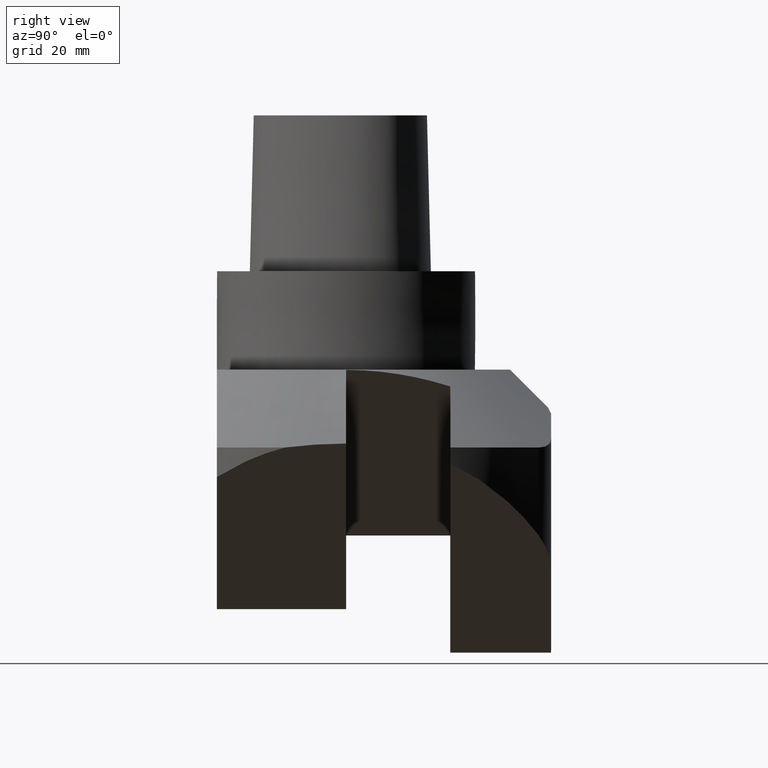
[diagram: clean part render]
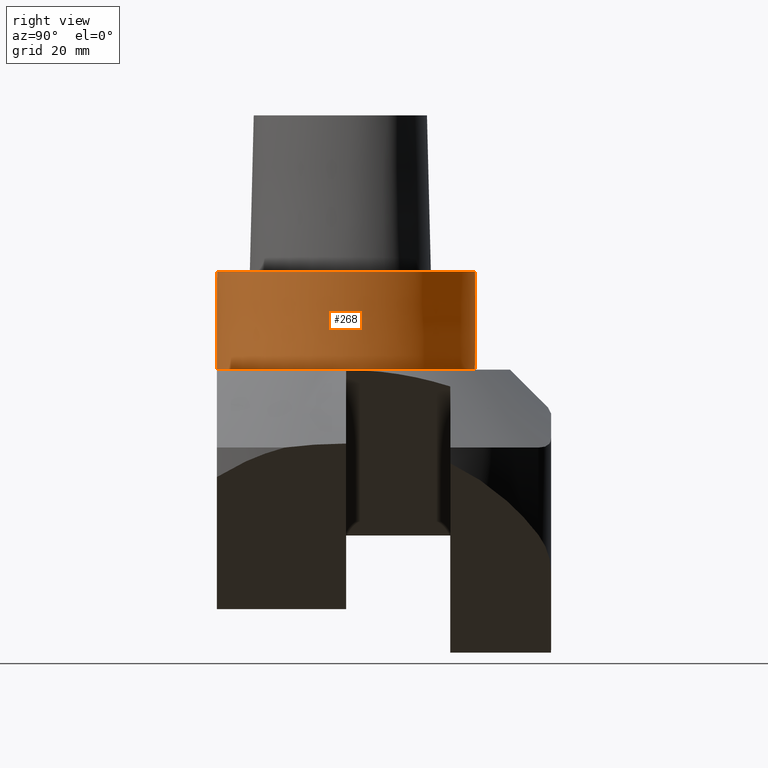
[diagram: same view with one face highlighted and labeled with its STEP entity id]
A machine part, right view. The second image highlights one B-rep face of the part: STEP entity #268.
In plain terms, the highlighted conical surface has half-angle 0 deg.
Its self-contained STEP definition (entity closure, byte-faithful):
#159=EDGE_CURVE('Unnamed[1]',#428,#429,#430,.T.);
#223=EDGE_CURVE('Unnamed[1]',#522,#523,#524,.T.);
#236=EDGE_CURVE('Unnamed[1]',#389,#522,#541,.T.);
#268=ADVANCED_FACE('Unnamed[1]',(#582,#583),#584,.T.);
#294=EDGE_CURVE('Unnamed[1]',#428,#389,#615,.T.);
#311=EDGE_CURVE('Unnamed[1]',#635,#635,#636,.T.);
#361=EDGE_CURVE('Unnamed[1]',#429,#523,#692,.T.);
#389=VERTEX_POINT('',#714);
#428=VERTEX_POINT('',#1703);
#429=VERTEX_POINT('',#1704);
#430=CIRCLE('',#1705,31.5002544909576);
#522=VERTEX_POINT('',#2010);
#523=VERTEX_POINT('',#2011);
#524=B_SPLINE_CURVE_WITH_KNOTS('',2,(#2012,#2013,#2014),.UNSPECIFIED.,.F.,.F.,(3,3),(0.0,4.99991866536584),.UNSPECIFIED.);
#541=CIRCLE('',#2047,31.5002339679628);
#582=FACE_BOUND('',#2150,.T.);
#583=FACE_BOUND('',#2151,.T.);
#584=CONICAL_SURFACE('',#2152,31.5002052340374,4.1046681391466E-006);
#615=B_SPLINE_CURVE_WITH_KNOTS('',3,(#4726,#4727,#4728,#4729,#4730,#4731),.UNSPECIFIED.,.F.,.F.,(4,2,4),(0.0,3.30578958740234,6.61157917480468),.UNSPECIFIED.);
#635=VERTEX_POINT('',#4814);
#636=CIRCLE('',#4815,31.5001559771172);
#692=CIRCLE('',#5572,31.5002544909576);
#714=CARTESIAN_POINT('',(-6.80962883030857,-30.7553848168063,-19.0005248375672));
#1703=CARTESIAN_POINT('',(-7.40691189310415,-30.6170489956649,-24.0004407851518));
#1704=CARTESIAN_POINT('',(-31.5002544909576,4.57334483033232E-016,-24.0004407851647));
#1705=AXIS2_PLACEMENT_3D('',#5630,#5631,#5632);
#2010=CARTESIAN_POINT('',(0.121538296030963,-31.4999994996666,-19.0005248375701));
#2011=CARTESIAN_POINT('',(0.126751189828586,-31.4999994782694,-24.0004407851647));
#2012=CARTESIAN_POINT('',(0.121538296030963,-31.4999994996666,-19.0005248375701));
#2013=CARTESIAN_POINT('',(0.1241447418088,-31.499999488968,-21.447940645919));
#2014=CARTESIAN_POINT('',(0.126751189829248,-31.4999994782694,-24.0004407851647));
#2047=AXIS2_PLACEMENT_3D('',#5749,#5750,#5751);
#2150=EDGE_LOOP('',(#5789));
#2151=EDGE_LOOP('',(#5790,#5791,#5792,#5793,#5794));
#2152=AXIS2_PLACEMENT_3D('',#5795,#5796,#5797);
#4726=CARTESIAN_POINT('',(-7.52637056394566,-30.5879067234986,-25.0004407852147));
#4727=CARTESIAN_POINT('',(-7.39572040240043,-30.6200494957232,-23.9067558217634));
#4728=CARTESIAN_POINT('',(-7.25200205830666,-30.6544601606449,-22.7036755838577));
#4729=CARTESIAN_POINT('',(-6.96455811191004,-30.7210313899229,-20.2974537081725));
#4730=CARTESIAN_POINT('',(-6.82083251363735,-30.7531931179849,-19.094312102107));
#4731=CARTESIAN_POINT('',(-6.69017025994648,-30.7815870827568,-18.0005248375887));
#4814=CARTESIAN_POINT('',(-31.5001559771172,5.78648477850284E-015,-4.49193091577038E-015));
#4815=AXIS2_PLACEMENT_3D('',#5842,#5843,#5844);
#5572=AXIS2_PLACEMENT_3D('',#5904,#5905,#5906);
#5630=CARTESIAN_POINT('',(2.04466525117757E-015,-5.32916839216851E-015,-24.0004407851647));
#5631=DIRECTION('',(8.51928208102506E-017,-2.22044604925031E-016,-1.0));
#5632=DIRECTION('',(-1.0,1.83697019872103E-016,-8.51928208102506E-017));
#5749=CARTESIAN_POINT('',(1.61870830778783E-015,-4.2189640309265E-015,-19.0005248375701));
#5750=DIRECTION('',(-6.91670305752962E-016,-2.90916342533272E-016,1.0));
#5751=DIRECTION('',(-1.0,1.83697019872103E-016,-6.91670305752961E-016));
#5789=ORIENTED_EDGE('',*,*,#311,.T.);
#5790=ORIENTED_EDGE('',*,*,#294,.T.);
#5791=ORIENTED_EDGE('',*,*,#236,.T.);
#5792=ORIENTED_EDGE('',*,*,#223,.T.);
#5793=ORIENTED_EDGE('',*,*,#361,.F.);
#5794=ORIENTED_EDGE('',*,*,#159,.F.);
#5795=CARTESIAN_POINT('',(1.02233262558878E-015,-2.66458419608425E-015,-12.0002203925823));
#5796=DIRECTION('',(8.51928208102506E-017,-2.22044604925031E-016,-1.0));
#5797=DIRECTION('',(-1.0,1.83697019872103E-016,-8.51928208102506E-017));
#5842=CARTESIAN_POINT('',(0.0,0.0,0.0));
#5843=DIRECTION('',(8.51928208102506E-017,-2.22044604925031E-016,-1.0));
#5844=DIRECTION('',(-1.0,1.83697019872103E-016,-8.51928208102506E-017));
#5904=CARTESIAN_POINT('',(2.04466525117757E-015,-5.32916839216851E-015,-24.0004407851647));
#5905=DIRECTION('',(8.51928208102506E-017,-2.22044604925031E-016,-1.0));
#5906=DIRECTION('',(-1.0,1.83697019872103E-016,-8.51928208102506E-017));